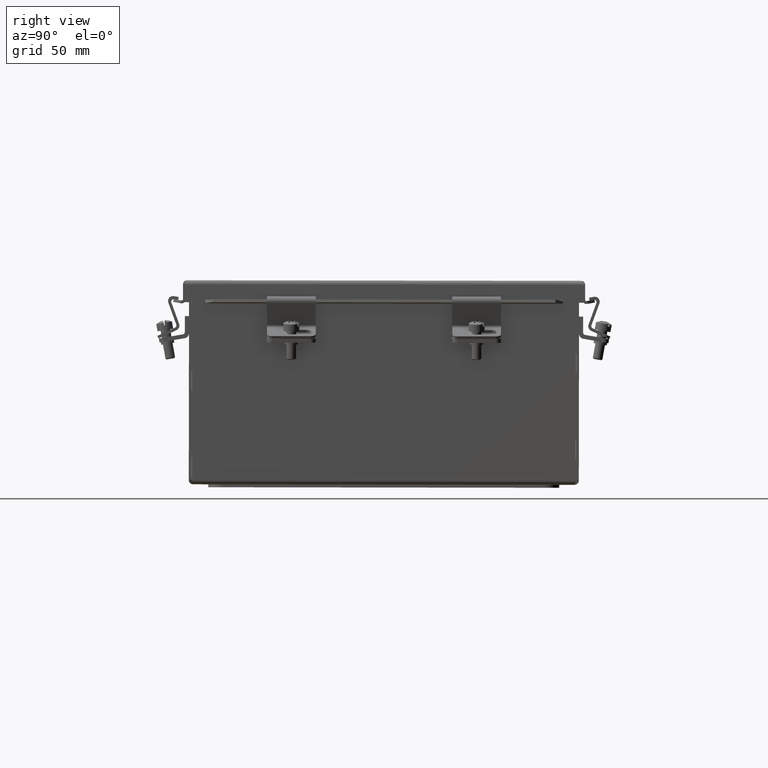
[diagram: clean part render]
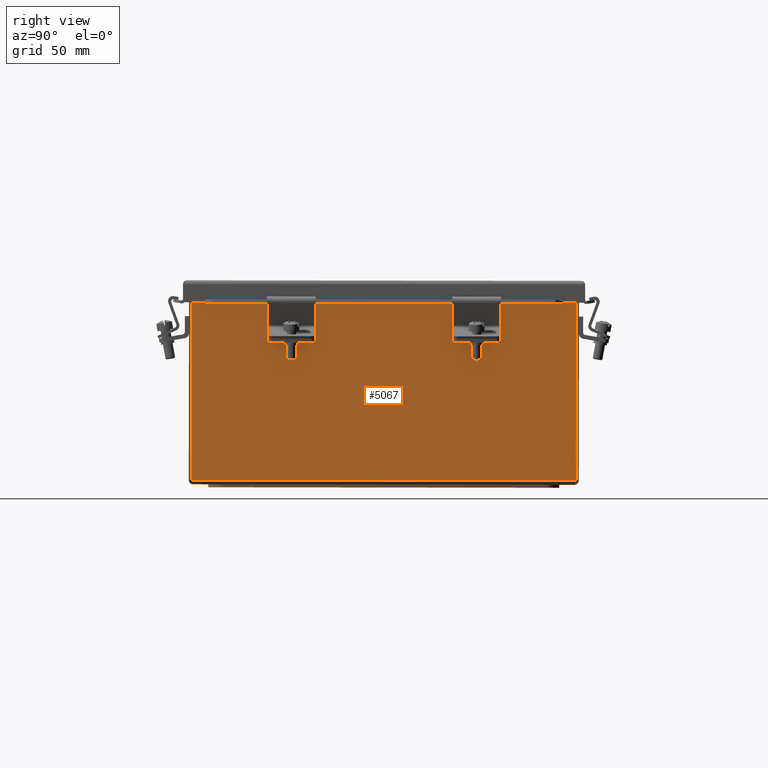
[diagram: same view with one face highlighted and labeled with its STEP entity id]
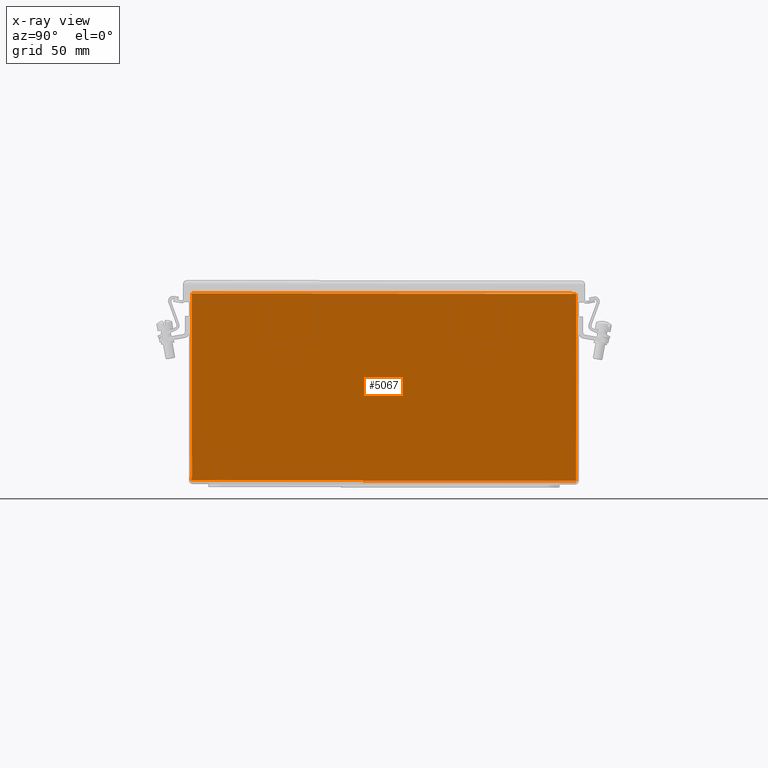
[diagram: x-ray of the same camera — body ghosted, the highlighted face saturated]
A machine part, right view. The second image highlights one B-rep face of the part: STEP entity #5067.
The next image is the same camera in x-ray: the body ghosted, the highlighted face saturated — about 0% of this face is hidden behind the body in this view.
In plain terms, the highlighted planar face has unit normal (-1, 0, 0).
Its self-contained STEP definition (entity closure, byte-faithful):
#670=PLANE('',#5680);
#991=FACE_OUTER_BOUND('',#1292,.T.);
#1292=EDGE_LOOP('',(#4536,#4537,#4538,#4539));
#1750=LINE('',#8778,#2217);
#1765=LINE('',#8870,#2232);
#1766=LINE('',#8872,#2233);
#1767=LINE('',#8873,#2234);
#2217=VECTOR('',#6798,0.393700787401575);
#2232=VECTOR('',#6827,0.393700787401575);
#2233=VECTOR('',#6828,0.393700787401575);
#2234=VECTOR('',#6829,0.393700787401575);
#2763=VERTEX_POINT('',#8769);
#2764=VERTEX_POINT('',#8777);
#2773=VERTEX_POINT('',#8869);
#2774=VERTEX_POINT('',#8871);
#3352=EDGE_CURVE('',#2764,#2763,#1750,.T.);
#3370=EDGE_CURVE('',#2773,#2763,#1765,.T.);
#3371=EDGE_CURVE('',#2773,#2774,#1766,.T.);
#3372=EDGE_CURVE('',#2764,#2774,#1767,.T.);
#4536=ORIENTED_EDGE('',*,*,#3352,.T.);
#4537=ORIENTED_EDGE('',*,*,#3370,.F.);
#4538=ORIENTED_EDGE('',*,*,#3371,.T.);
#4539=ORIENTED_EDGE('',*,*,#3372,.F.);
#5067=ADVANCED_FACE('',(#991),#670,.F.);
#5680=AXIS2_PLACEMENT_3D('',#8868,#6825,#6826);
#6798=DIRECTION('',(1.,-3.79972344384236E-16,-4.25976546901969E-16));
#6825=DIRECTION('center_axis',(-3.79972344384234E-16,-1.,5.16788724274361E-15));
#6826=DIRECTION('ref_axis',(1.,-3.79972344384233E-16,1.39870617275612E-16));
#6827=DIRECTION('',(7.64209001932855E-31,5.39030285815812E-15,1.));
#6828=DIRECTION('',(-1.,3.79972344384234E-16,-1.29422102588231E-30));
#6829=DIRECTION('',(-7.64209001932855E-31,-5.39030285815812E-15,-1.));
#8769=CARTESIAN_POINT('',(9.9252928932188,12.,4.89474999999999));
#8777=CARTESIAN_POINT('',(0.0747071067811816,12.,4.89475));
#8778=CARTESIAN_POINT('',(2.53735355339059,12.,4.89475));
#8868=CARTESIAN_POINT('Origin',(4.99999999999999,12.,2.514322569683));
#8869=CARTESIAN_POINT('',(9.92529289321881,12.,0.105249999999998));
#8870=CARTESIAN_POINT('',(9.92529289321881,12.,0.105249999999997));
#8871=CARTESIAN_POINT('',(0.0747071067811829,12.,0.10525));
#8872=CARTESIAN_POINT('',(4.99999999999999,12.,0.105250000000001));
#8873=CARTESIAN_POINT('',(0.0747071067811816,12.,0.10525));